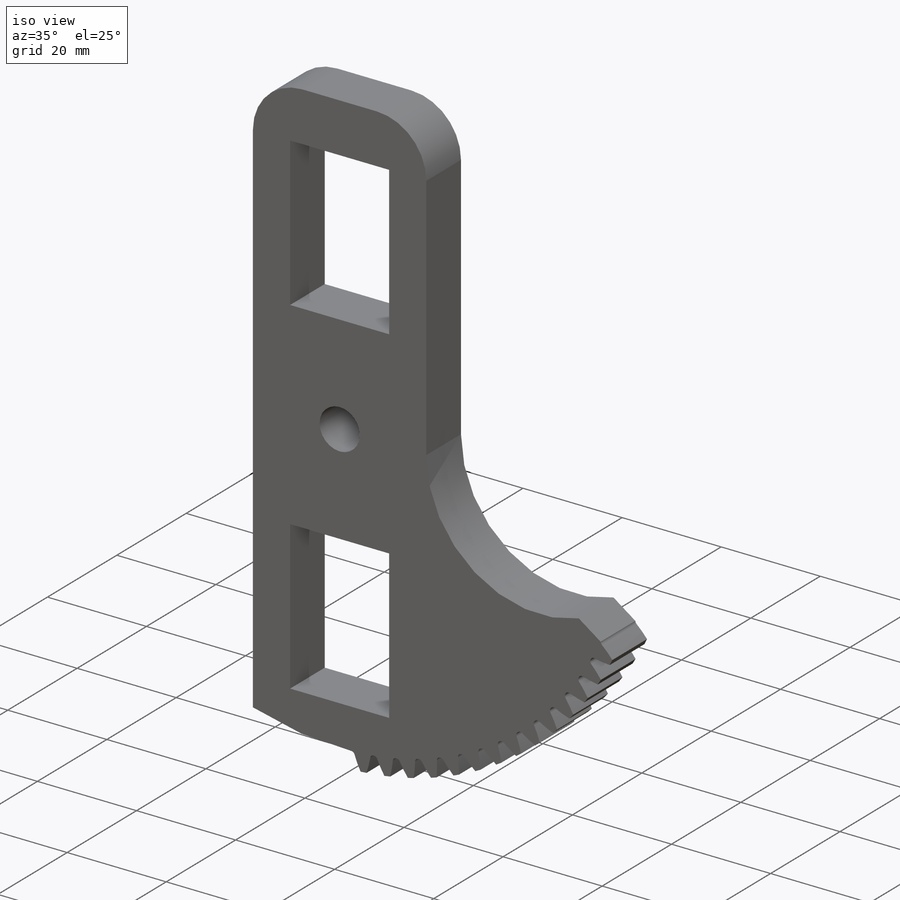
[diagram: iso view]
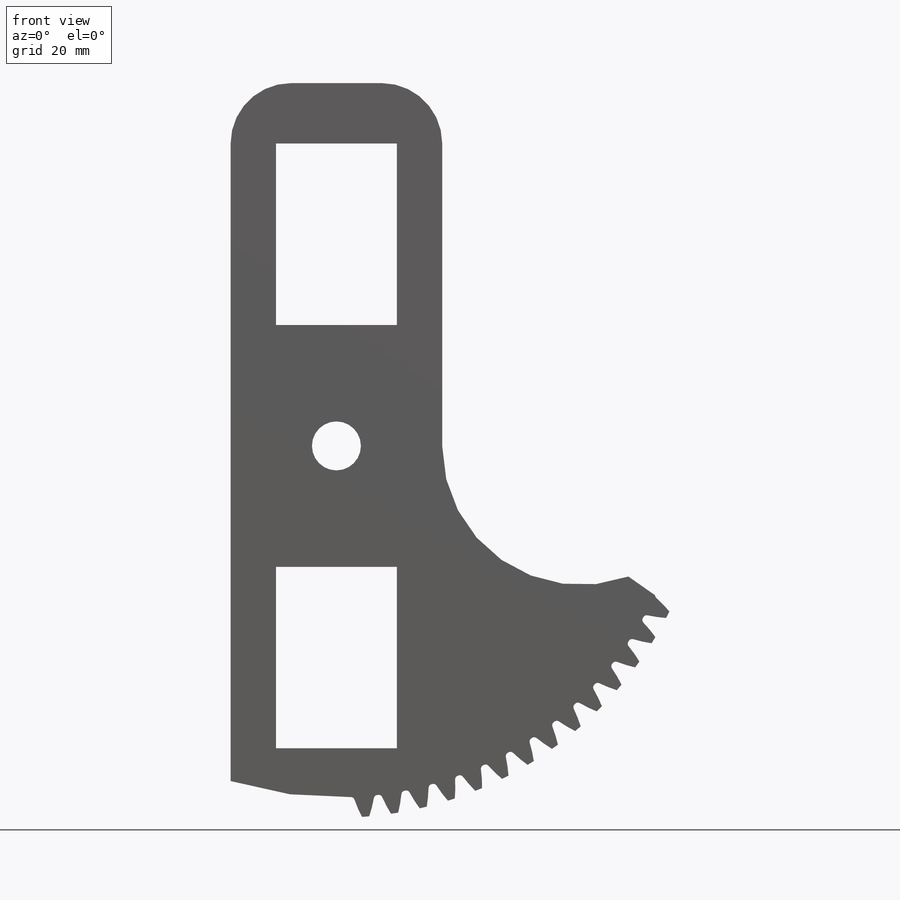
[diagram: front view]
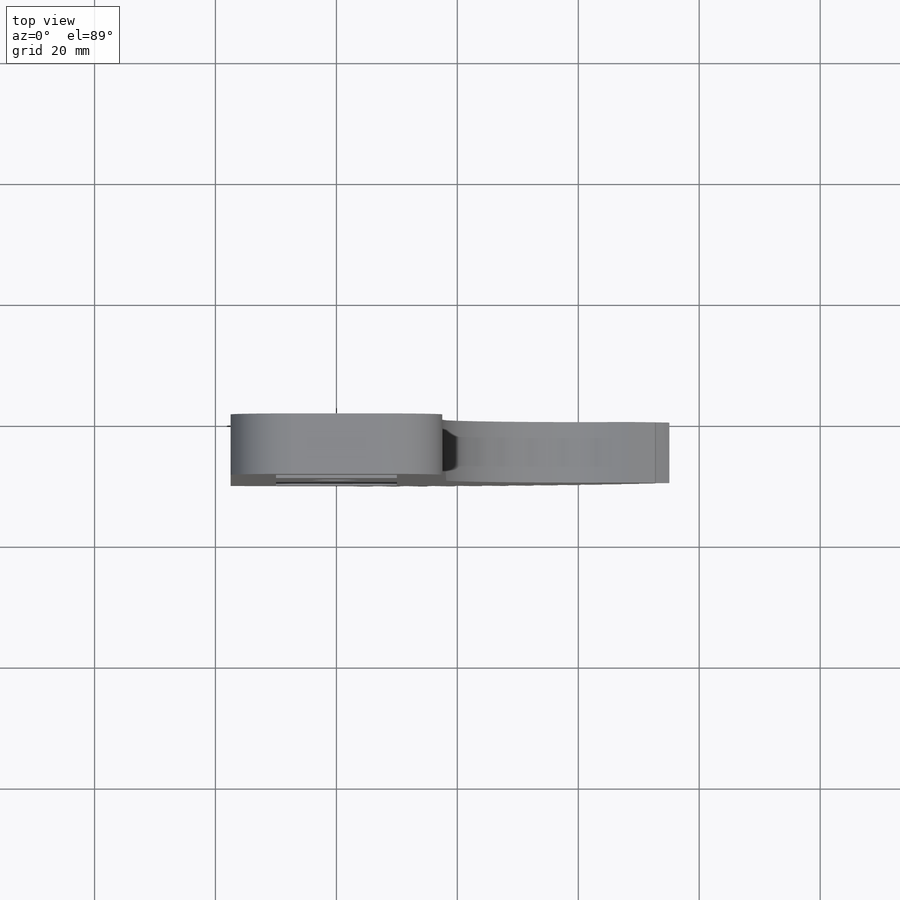
[diagram: top view]
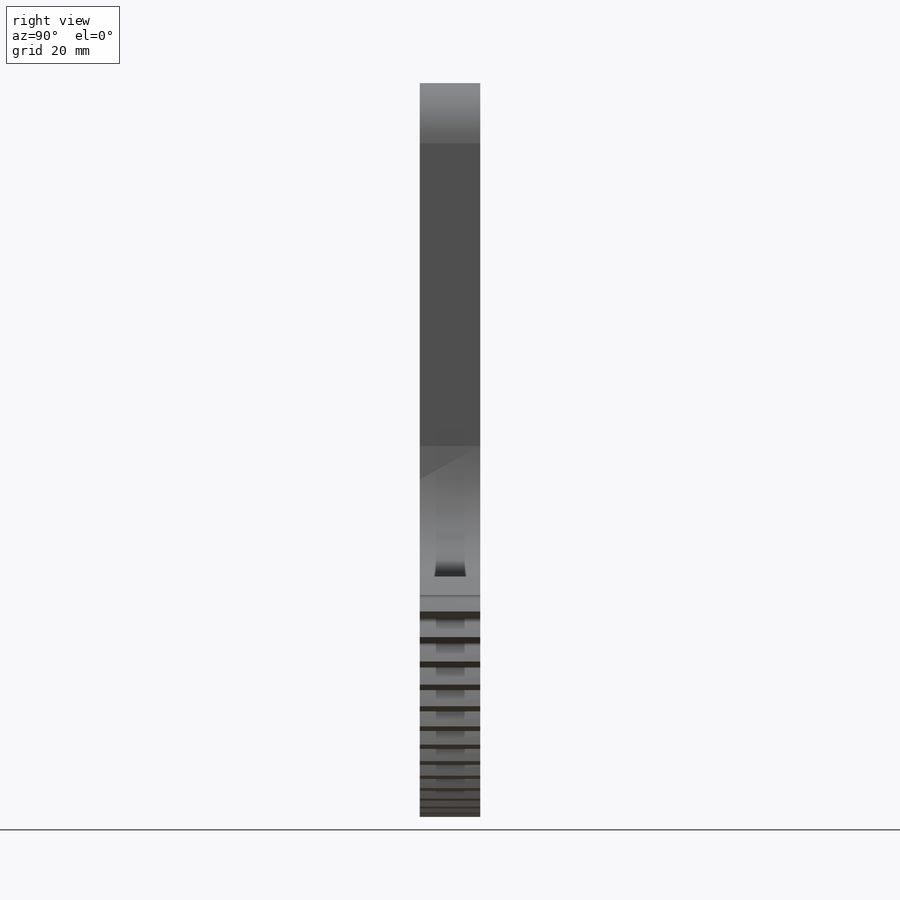
[diagram: right view]
SOLIDWORKS PART (.sldprt)
format: sldprt  version: not decoded by parser v0  size: 1,306,624 bytes
history: native  units: mm
features: sketch x8, cut_extrude x5, extrude x2, material x1, pattern_circular x1 + 2 further entries (+13 scaffold rows collapsed)
feature tree (32):
  scaffold x13  (default folders/planes/origin — collapsed)
  material  "Material <not specified>"
  "Annotations"  RD1=20mm RD2=30mm RD3=40mm RD4=35mm
  "Design Table"
  sketch  "Pitch Diameter"  dims[D1=120.0mm]
  sketch  "Sketch1"  dims[c1.D1=14.0mm c1.D2=5.0mm c1.D3=14.0mm c1.D4=~22.241922mm c2.D1=~5.360874mm c2.D2=~9.467075mm c3.D1=0.0mm c3.D2=0.0mm c3.D3=~0.239194mm c3.D4=~0.458361mm c3.D5=~0.658288mm c3.D6=~0.839779mm c3.D7=~1.003654mm c3.D8=~1.150747mm c3.D9=~1.281905mm c3.D10=~1.397989mm c3.D11=~1.499873mm c3.D12=~1.588442mm c3.D13=~1.594522mm c3.D14=~1.600601mm c3.D15=~1.615407mm c3.D16=~1.633931mm c3.D17=~1.657907mm c3.D18=~1.690172mm c3.D19=~1.735359mm c3.D20=~1.80068mm c3.D21=~1.895667mm c3.D22=~2.027399mm c3.D23=~2.188528mm c3.D24=0.0mm c3.D25=~62.806223mm c3.D26=~62.306085mm c3.D27=~61.822657mm c3.D28=~61.35654mm c3.D29=~60.90831mm c3.D30=~60.478516mm c3.D31=~60.067684mm c3.D32=~59.67631mm c3.D33=~59.304865mm c3.D34=~58.953793mm c3.D35=~58.623509mm c3.D36=~58.601697mm c3.D37=~58.579886mm c3.D38=~58.534714mm c3.D39=~58.486988mm c3.D40=~58.435435mm c3.D41=~58.378574mm c3.D42=~58.315092mm c3.D43=~58.245076mm c3.D44=~58.173019mm c3.D45=~58.112245mm c3.D46=~58.083784mm]
  extrude  "Tooth"  Depth=10mm
  pattern_circular  "Teeth"  Count=80 Angle=18deg
  sketch  "Sketch6"  dims[D1=123.0mm]
  cut_extrude  "Addendum"  [1 undecoded]
  sketch  "Sketch7"
  cut_extrude  "Cut-Extrude1"  Depth=10mm
  sketch  "Sketch8"  dims[c1.D4=10.0mm c1.D1=~85.729655mm c2.D1=55.0deg c2.D2=10.0mm c2.D3=10.0mm c2.D5=25.0mm]
  cut_extrude  "Cut-Extrude2"  Depth=10mm
  sketch  "Sketch9"  dims[c1.D6=8.0mm c1.D7=10.0mm c1.D13=10.0mm c1.D1=120.0mm c1.D2=30.0mm c1.D3=10.0mm c1.D4=20.0mm c1.D5=35.0mm c1.D8=120.0mm c1.D9=60.0mm c1.D10=17.5mm c2.D8=30.0mm c2.D11=10.0mm c2.D12=10.0mm c3.D8=30.0mm c3.D11=7.5mm]
  extrude  "Boss-Extrude1"  Depth=10mm
  sketch  "Sketch10"
  cut_extrude  "Cut-Extrude3"  Depth=10mm
  sketch  "Sketch11"
  cut_extrude  "Cut-Extrude4"  Depth=10mm
decode coverage: 12 of 16 modeling features carry decoded parameters; 2 rows unclassified (native names shown)
note: ~ marks probable driven/reference dimensions
note: 1 parameter value undecoded
note: suppression state not decoded; provenance and decode notes live in map.json
